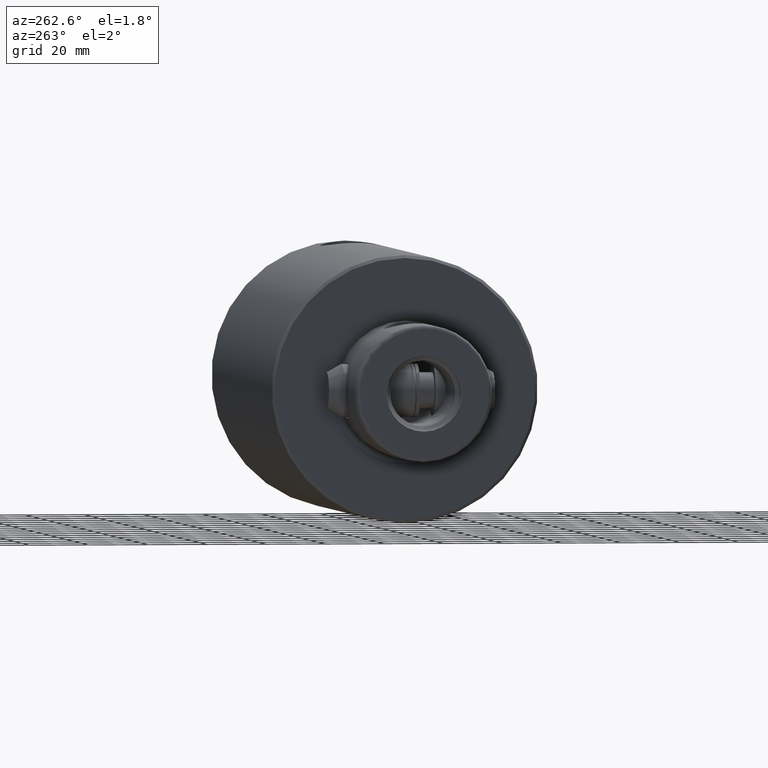
[diagram: clean part render]
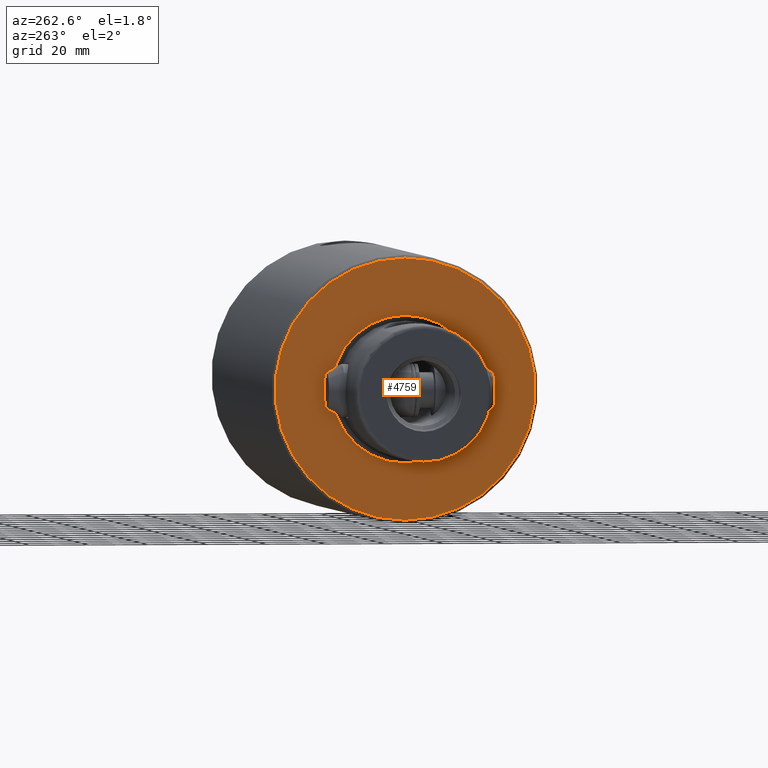
[diagram: same view with one face highlighted and labeled with its STEP entity id]
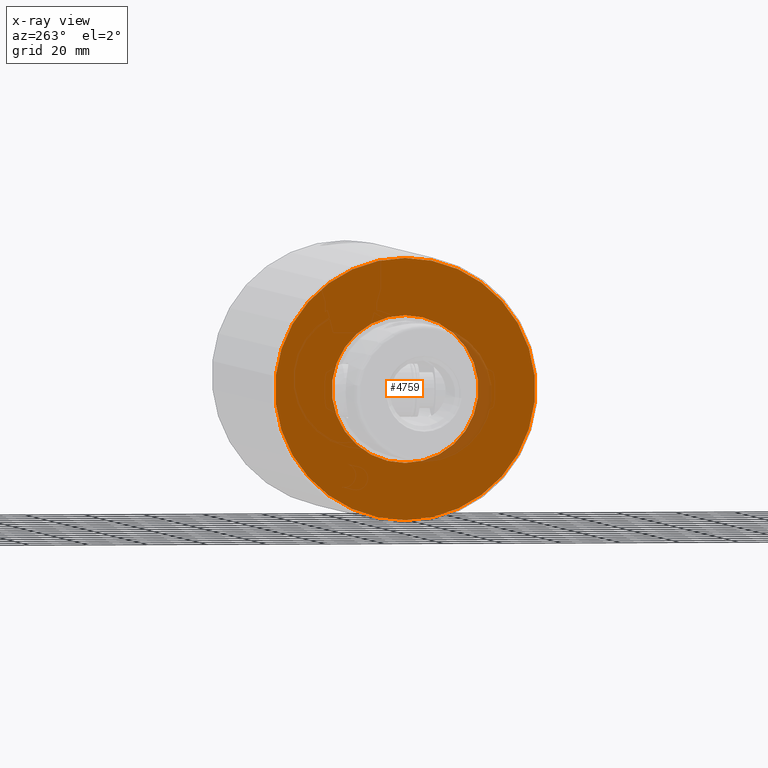
[diagram: x-ray of the same camera — body ghosted, the highlighted face saturated]
A machine part, auxiliary view. The second image highlights one B-rep face of the part: STEP entity #4759.
The next image is the same camera in x-ray: the body ghosted, the highlighted face saturated — about 5% of this face is hidden behind the body in this view.
In plain terms, the highlighted planar face has unit normal (-1, 0, 0).
Its self-contained STEP definition (entity closure, byte-faithful):
#35 = DIRECTION ( 'NONE',  ( 1.000000000000000000, 0.0000000000000000000, 0.0000000000000000000 ) ) ;
#229 = CIRCLE ( 'NONE', #4050, 24.79524911219976200 ) ;
#251 = CARTESIAN_POINT ( 'NONE',  ( -44.00000000000002100, 0.0000000000000000000, 160.0000000000000000 ) ) ;
#413 = VERTEX_POINT ( 'NONE', #1326 ) ;
#472 = AXIS2_PLACEMENT_3D ( 'NONE', #813, #3935, #35 ) ;
#560 = VERTEX_POINT ( 'NONE', #251 ) ;
#599 = CARTESIAN_POINT ( 'NONE',  ( 0.0000000000000000000, 0.0000000000000000000, 160.0000000000000000 ) ) ;
#700 = CIRCLE ( 'NONE', #472, 44.00000000000002100 ) ;
#746 = DIRECTION ( 'NONE',  ( 0.0000000000000000000, 0.0000000000000000000, 1.000000000000000000 ) ) ;
#813 = CARTESIAN_POINT ( 'NONE',  ( 0.0000000000000000000, 0.0000000000000000000, 160.0000000000000000 ) ) ;
#814 = AXIS2_PLACEMENT_3D ( 'NONE', #1907, #746, #3165 ) ;
#830 = FACE_OUTER_BOUND ( 'NONE', #4237, .T. ) ;
#872 = AXIS2_PLACEMENT_3D ( 'NONE', #599, #2183, #3735 ) ;
#1308 = ORIENTED_EDGE ( 'NONE', *, *, #2425, .F. ) ;
#1323 = VERTEX_POINT ( 'NONE', #2156 ) ;
#1326 = CARTESIAN_POINT ( 'NONE',  ( -24.79524911219976200, 3.036542245931669000E-015, 160.0000000000000000 ) ) ;
#1692 = DIRECTION ( 'NONE',  ( 0.0000000000000000000, 0.0000000000000000000, 1.000000000000000000 ) ) ;
#1843 = ORIENTED_EDGE ( 'NONE', *, *, #4897, .T. ) ;
#1868 = FACE_BOUND ( 'NONE', #3506, .T. ) ;
#1907 = CARTESIAN_POINT ( 'NONE',  ( 0.0000000000000000000, 0.0000000000000000000, 160.0000000000000000 ) ) ;
#1940 = DIRECTION ( 'NONE',  ( 1.000000000000000000, 0.0000000000000000000, 0.0000000000000000000 ) ) ;
#2156 = CARTESIAN_POINT ( 'NONE',  ( 44.00000000000002100, 5.449678256205723600E-015, 160.0000000000000000 ) ) ;
#2183 = DIRECTION ( 'NONE',  ( 0.0000000000000000000, 0.0000000000000000000, 1.000000000000000000 ) ) ;
#2425 = EDGE_CURVE ( 'NONE', #413, #2603, #229, .T. ) ;
#2470 = CARTESIAN_POINT ( 'NONE',  ( 0.0000000000000000000, 0.0000000000000000000, 160.0000000000000000 ) ) ;
#2603 = VERTEX_POINT ( 'NONE', #3626 ) ;
#2726 = EDGE_CURVE ( 'NONE', #2603, #413, #4518, .T. ) ;
#3161 = CARTESIAN_POINT ( 'NONE',  ( 0.0000000000000000000, 0.0000000000000000000, 160.0000000000000000 ) ) ;
#3165 = DIRECTION ( 'NONE',  ( 1.000000000000000000, 0.0000000000000000000, 0.0000000000000000000 ) ) ;
#3506 = EDGE_LOOP ( 'NONE', ( #4740, #1308 ) ) ;
#3626 = CARTESIAN_POINT ( 'NONE',  ( 24.79524911219976200, 0.0000000000000000000, 160.0000000000000000 ) ) ;
#3735 = DIRECTION ( 'NONE',  ( 1.000000000000000000, 0.0000000000000000000, 0.0000000000000000000 ) ) ;
#3912 = ORIENTED_EDGE ( 'NONE', *, *, #4847, .T. ) ;
#3935 = DIRECTION ( 'NONE',  ( 0.0000000000000000000, 0.0000000000000000000, 1.000000000000000000 ) ) ;
#4043 = DIRECTION ( 'NONE',  ( 1.000000000000000000, 0.0000000000000000000, 0.0000000000000000000 ) ) ;
#4050 = AXIS2_PLACEMENT_3D ( 'NONE', #3161, #4715, #1940 ) ;
#4187 = CIRCLE ( 'NONE', #5054, 44.00000000000002100 ) ;
#4237 = EDGE_LOOP ( 'NONE', ( #3912, #1843 ) ) ;
#4279 = PLANE ( 'NONE',  #814 ) ;
#4518 = CIRCLE ( 'NONE', #872, 24.79524911219976200 ) ;
#4715 = DIRECTION ( 'NONE',  ( 0.0000000000000000000, 0.0000000000000000000, 1.000000000000000000 ) ) ;
#4740 = ORIENTED_EDGE ( 'NONE', *, *, #2726, .F. ) ;
#4759 = ADVANCED_FACE ( 'NONE', ( #1868, #830 ), #4279, .T. ) ;
#4847 = EDGE_CURVE ( 'NONE', #560, #1323, #4187, .T. ) ;
#4897 = EDGE_CURVE ( 'NONE', #1323, #560, #700, .T. ) ;
#5054 = AXIS2_PLACEMENT_3D ( 'NONE', #2470, #1692, #4043 ) ;